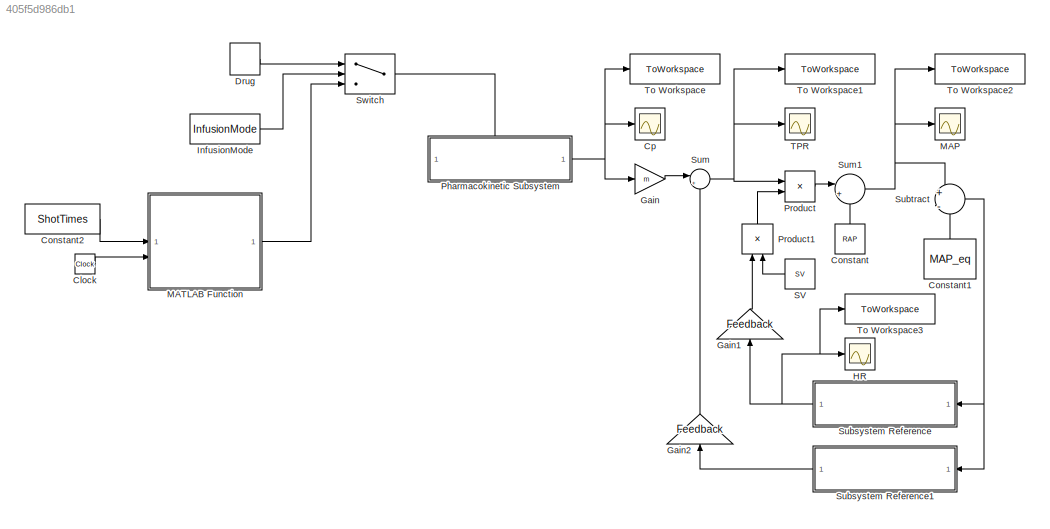
MODEL slx_405f5d986db1
KIND model
CONFIG AbsTol = auto
CONFIG EnableMultiTasking = off
CONFIG FixedStep = auto
CONFIG InitFcn = clear;
CONFIG MaxStep = auto
CONFIG MinStep = auto
CONFIG RelTol = 1e-3
CONFIG SampleTimeConstraint = Unconstrained
CONFIG SolverName = VariableStepAuto
CONFIG StartTime = 0.0
CONFIG StopTime = 25
BLOCK [DiscretePulseGenerator]  Drug
  Amplitude = D/T
  Period = 1e6
  PhaseDelay = 1
  PulseType = Time based
  PulseWidth = 10/1e6*100
BLOCK [Clock] Clock
BLOCK [Constant] Constant
  NameLocation = right
  Value = RAP
BLOCK [Constant] Constant1
  NameLocation = right
  Value = MAP_eq
BLOCK [Constant] Constant2
  Value = ShotTimes
BLOCK [Scope] Cp
  Floating = off
  NumInputPorts = 1
  ScopeSpecificationString = Simulink.scopes.TimeScopeBlockCfg('CurrentConfiguration', extmgr.ConfigurationSet(extmgr.Configuration('Core','General UI',true),extmgr.Configuration('Core','Source UI',true),extmgr.Configuration('Sources','WiredSimulink',true),extmgr.Configuration('Visuals','Time Domain',true,'SerializedDisplays',{struct('MinYLimReal','-16.06351','MaxYLimReal','144.57161','YLabelReal','','MinYLimMag','0.00000','M...<+1384ch>
BLOCK [Gain] Gain
  Gain = m
BLOCK [Gain] Gain1
  Gain = Feedback
  NameLocation = right
BLOCK [Gain] Gain2
  Gain = Feedback
  NameLocation = right
BLOCK [Scope] HR
  Floating = off
  NumInputPorts = 1
  ScopeSpecificationString = Simulink.scopes.TimeScopeBlockCfg('CurrentConfiguration', extmgr.ConfigurationSet(extmgr.Configuration('Core','General UI',true),extmgr.Configuration('Core','Source UI',true),extmgr.Configuration('Sources','WiredSimulink',true,'DataLoggingVariableName','ScopeData3'),extmgr.Configuration('Visuals','Time Domain',true,'SerializedDisplays',{struct('MinYLimReal','-11.85994','MaxYLimReal','106.7395','YL...<+1384ch>
BLOCK [Constant] InfusionMode
  Value = InfusionMode
BLOCK [Scope] MAP
  Floating = off
  NumInputPorts = 1
  ScopeSpecificationString = Simulink.scopes.TimeScopeBlockCfg('CurrentConfiguration', extmgr.ConfigurationSet(extmgr.Configuration('Core','General UI',true),extmgr.Configuration('Core','Source UI',true),extmgr.Configuration('Sources','WiredSimulink',true,'DataLoggingVariableName','ScopeData1'),extmgr.Configuration('Visuals','Time Domain',true,'SerializedDisplays',{struct('MinYLimReal','-5.63258','MaxYLimReal','100.69321','YL...<+1371ch>
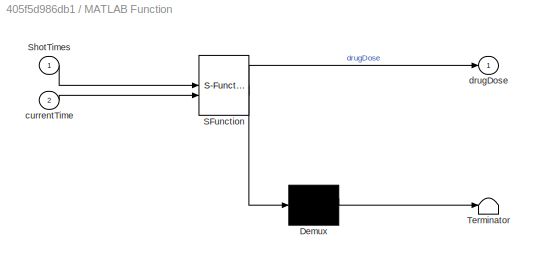
BLOCK [SubSystem] MATLAB Function
  ErrorFcn = Stateflow.Translate.translate
  PermitHierarchicalResolution = ExplicitOnly
  SFBlockType = MATLAB Function
  TreatAsAtomicUnit = on
BLOCK [Demux] MATLAB Function/ Demux 
  Outputs = 1
BLOCK [S-Function] MATLAB Function/ SFunction 
  EnableBusSupport = on
  FunctionName = sf_sfun
  PortCounts = [2 2]
  SFcnIsStateOwnerBlock = off
  SFunctionDeploymentMode = off
  Tag = Stateflow S-Function 2
BLOCK [Terminator] MATLAB Function/ Terminator 
BLOCK [Inport] MATLAB Function/ShotTimes
BLOCK [Inport] MATLAB Function/currentTime
  Port = 2
BLOCK [Outport] MATLAB Function/drugDose
BLOCK [SubSystem] Pharmacokinetic Subsystem
  PortSchema = {"entries":[{"content":{"sides":[{"content":{},"type":"ConnectorPlacement.EquallySpacedRectSide","uuid":"724ed912-986b-4240-841d-995132398956"},{"content":{"connectorIds":["Out1"],"side":"RIGHT"},"type":"ConnectorPlacement.EquallySpacedRectSide","uuid":"17b6dfd6-0df0-409a-9a6c-db7d93797c4e"},{"content":{"connectorIds":["In1"],"side":"TOP"},"type":"ConnectorPlacement.EquallySpacedRectSide","uuid":"...<+223ch>
  ReferencedSubsystem = Pharmacokinetic_Model
BLOCK [Product] Product
BLOCK [Product] Product1
  NameLocation = right
BLOCK [Constant] SV
  Value = SV
BLOCK [SubSystem] Subsystem Reference
  ReferencedSubsystem = Baroreflex_HR
BLOCK [SubSystem] Subsystem Reference1
  ReferencedSubsystem = Baroreflex_TPR
BLOCK [Sum] Subtract
  Inputs = +-
BLOCK [Sum] Sum
  Inputs = |++
BLOCK [Sum] Sum1
  Inputs = |++
BLOCK [Switch] Switch
  Criteria = u2 > Threshold
  InputSameDT = off
  SaturateOnIntegerOverflow = off
  Threshold = 0.5
BLOCK [Scope] TPR
  Floating = off
  NumInputPorts = 1
  ScopeSpecificationString = Simulink.scopes.TimeScopeBlockCfg('CurrentConfiguration', extmgr.ConfigurationSet(extmgr.Configuration('Core','General UI',true),extmgr.Configuration('Core','Source UI',true),extmgr.Configuration('Sources','WiredSimulink',true,'DataLoggingVariableName','ScopeData2'),extmgr.Configuration('Visuals','Time Domain',true,'SerializedDisplays',{struct('MinYLimReal','-1.56952','MaxYLimReal','14.12565','YLa...<+3432ch>
BLOCK [ToWorkspace] To Workspace
  FixptAsFi = on
  MaxDataPoints = inf
  SampleTime = -1
  SaveFormat = Structure With Time
  VariableName = Cp
BLOCK [ToWorkspace] To Workspace1
  FixptAsFi = on
  MaxDataPoints = inf
  SampleTime = -1
  SaveFormat = Structure With Time
  VariableName = TPR
BLOCK [ToWorkspace] To Workspace2
  FixptAsFi = on
  MaxDataPoints = inf
  SampleTime = -1
  SaveFormat = Structure With Time
  VariableName = MAP
BLOCK [ToWorkspace] To Workspace3
  FixptAsFi = on
  MaxDataPoints = inf
  SampleTime = -1
  SaveFormat = Structure With Time
  VariableName = HR
LINE  Drug:1 -> Switch:1
LINE Clock:1 -> MATLAB Function:2
LINE Constant1:1 -> Subtract:2
LINE Constant2:1 -> MATLAB Function:1
LINE Constant:1 -> Sum1:2
LINE Gain1:1 -> Product1:1
LINE Gain2:1 -> Sum:2
LINE Gain:1 -> Sum:1
LINE InfusionMode:1 -> Switch:2
LINE MATLAB Function:1 -> Switch:3
NET Pharmacokinetic Subsystem:1 -> Cp:1, Gain:1, To Workspace:1
LINE Product1:1 -> Product:2
LINE Product:1 -> Sum1:1
LINE SV:1 -> Product1:2
LINE Subsystem Reference1:1 -> Gain2:1
NET Subsystem Reference:1 -> Gain1:1, HR:1, To Workspace3:1
NET Subtract:1 -> Subsystem Reference1:1, Subsystem Reference:1
NET Sum1:1 -> MAP:1, Subtract:1, To Workspace2:1
NET Sum:1 -> Product:1, TPR:1, To Workspace1:1
LINE Switch:1 -> Pharmacokinetic Subsystem:1
note: NET lines group one-source signal fan-out (src -> all destinations, sorted); 1:1 wires keep LINE
CHART MATLAB Function states=1 transitions=1
  STATE_LABEL 'eML_blk_kernel()'
  STATE_LABEL 'SCRIPT:\nfunction drugDose = Calculate_DrugDose(ShotTimes, currentTime)\n%#codegen\n    % Define parameters\n    interval = 0.25;        % Duration each dose is active (hours)\n    dosePerShot = 350;      % Dose per individual shot (μg)\n    tolerance = 1e-3;       % Tolerance for time matching (hours)\n    \n    % Initialize drugDose\n    drugDose = 0;\n    \n    % Iterate through each ShotTime\n    for i = ...<+278ch>'
CHART  states=0 transitions=0
